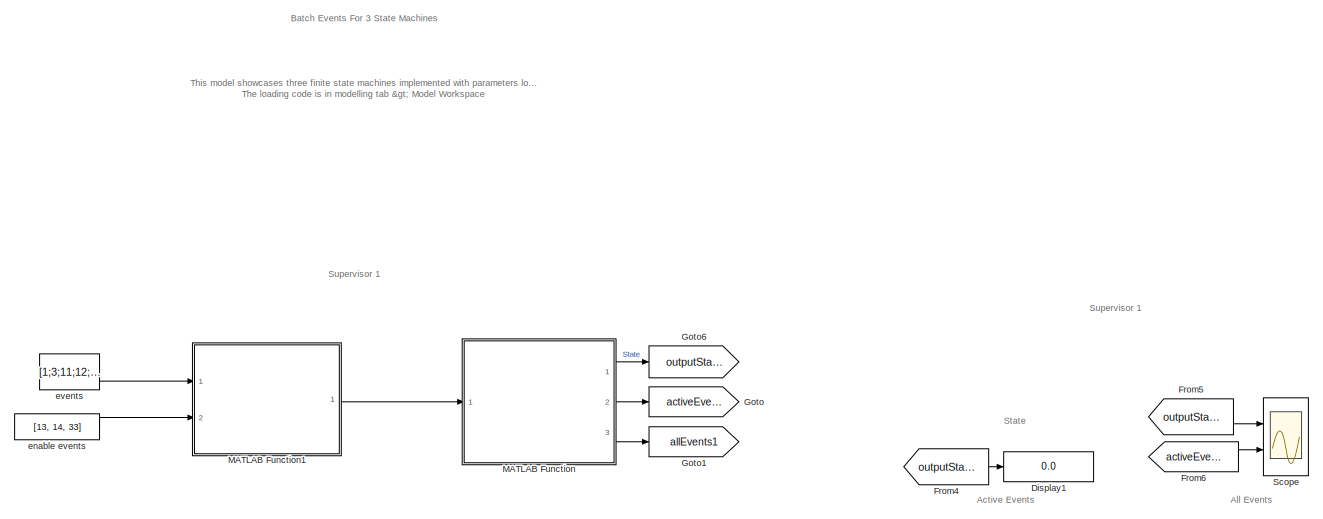
[diagram: root canvas - part 1/3, top left region]
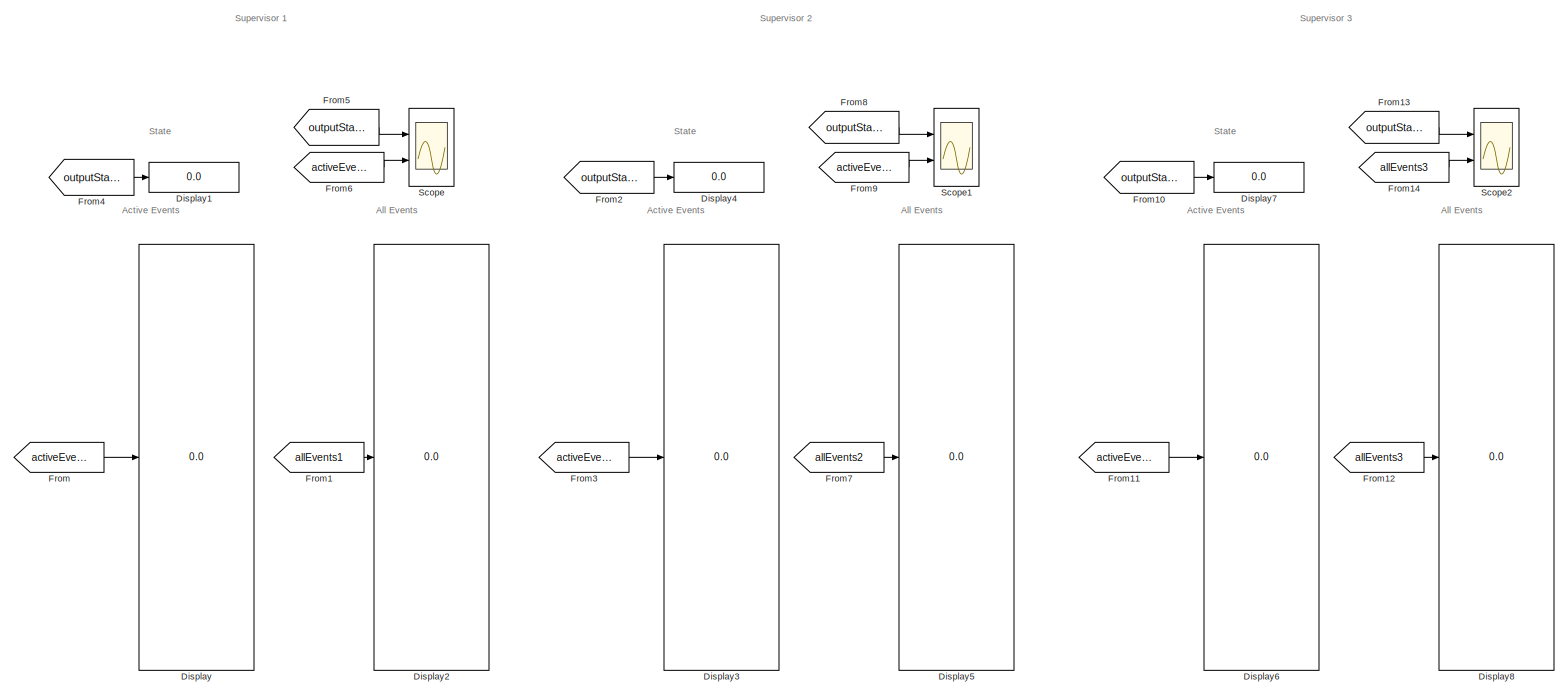
[diagram: root canvas - part 2/3, middle right region]
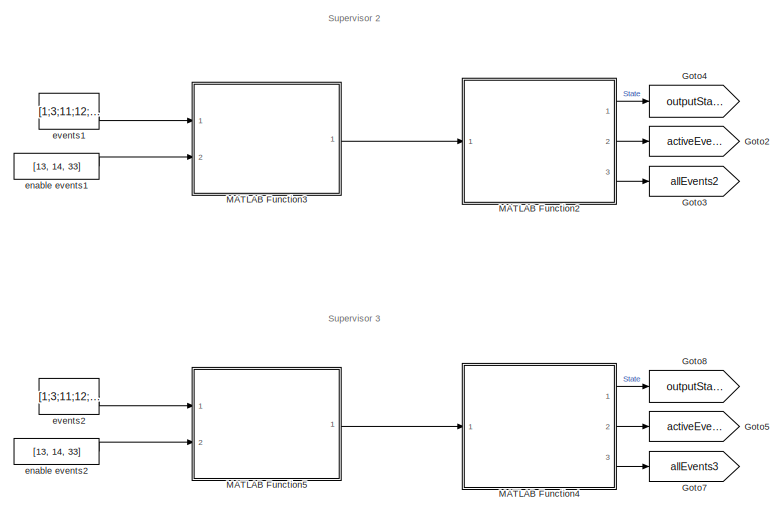
[diagram: root canvas - part 3/3, bottom left region]
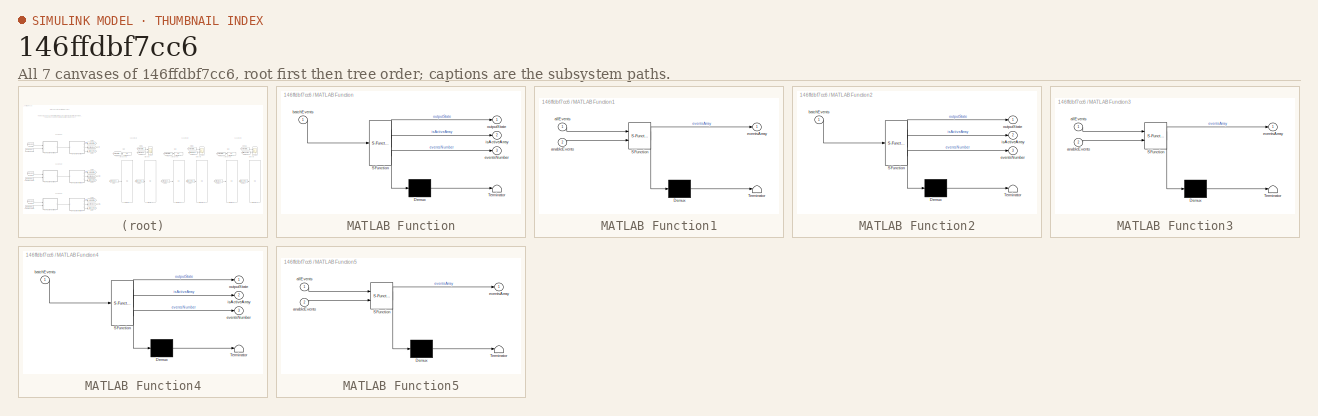
[diagram: thumbnail index - all 7 canvases of the model, root first then tree order]
MODEL slx_146ffdbf7cc6
KIND model
CONFIG AbsTol = auto
CONFIG EnableMultiTasking = off
CONFIG FixedStep = auto
CONFIG MaxStep = auto
CONFIG MinStep = auto
CONFIG RelTol = 1e-3
CONFIG SampleTimeConstraint = Unconstrained
CONFIG SolverName = VariableStepAuto
CONFIG StartTime = 0.0
CONFIG StopTime = 10.0
WORKSPACE source: MATLAB code (in-file)
WORKSPACE code: addpath model
WORKSPACE code: addpath utils
WORKSPACE utils1 = StateMachineUtils
WORKSPACE utils1 = utils1.loadEventsInAds('resources/tct/ALLEVENT.ADS')
WORKSPACE utils1 = utils1.loadDisabledEventsInPdt('resources/tct/supervisor1/DATA_SIMSUP1_MG1.PDT')
WORKSPACE utils1 = utils1.loadTransitionsInAds('resources/tct/supervisor1/SIMSUP1_MG1.ADS')
WORKSPACE encodedStates1 = StateEncoder.encode(utils1.statesArray)
WORKSPACE transitions1 = utils1.transitions
WORKSPACE allEvents1 = utils1.eventsArray
WORKSPACE utils2 = StateMachineUtils
WORKSPACE utils2 = utils2.loadEventsInAds('resources/tct/ALLEVENT.ADS')
WORKSPACE utils2 = utils2.loadDisabledEventsInPdt('resources/tct/supervisor2/DATA_SIMSUP2_MG1.PDT')
WORKSPACE utils2 = utils2.loadTransitionsInAds('resources/tct/supervisor2/SIMSUP2_MG1.ADS')
WORKSPACE encodedStates2 = StateEncoder.encode(utils2.statesArray)
WORKSPACE transitions2 = utils2.transitions
WORKSPACE allEvents2 = utils2.eventsArray
WORKSPACE utils3 = StateMachineUtils
WORKSPACE utils3 = utils3.loadEventsInAds('resources/tct/ALLEVENT.ADS')
WORKSPACE utils3 = utils3.loadDisabledEventsInPdt('resources/tct/supervisor3/DATA_SIMSUP3_MG1.PDT')
WORKSPACE utils3 = utils3.loadTransitionsInAds('resources/tct/supervisor3/SIMSUP3_MG1.ADS')
WORKSPACE encodedStates3 = StateEncoder.encode(utils3.statesArray)
WORKSPACE transitions3 = utils3.transitions
WORKSPACE allEvents3 = utils3.eventsArray
BLOCK [Display] Display
  Decimation = 1
  Ports = [1]
BLOCK [Display] Display1
  Decimation = 1
  Ports = [1]
BLOCK [Display] Display2
  Decimation = 1
  Ports = [1]
BLOCK [Display] Display3
  Decimation = 1
  Ports = [1]
BLOCK [Display] Display4
  Decimation = 1
  Ports = [1]
BLOCK [Display] Display5
  Decimation = 1
  Ports = [1]
BLOCK [Display] Display6
  Decimation = 1
  Ports = [1]
BLOCK [Display] Display7
  Decimation = 1
  Ports = [1]
BLOCK [Display] Display8
  Decimation = 1
  Ports = [1]
BLOCK [From] From
  GotoTag = activeEvents1
BLOCK [From] From1
  GotoTag = allEvents1
BLOCK [From] From10
  GotoTag = outputState3
BLOCK [From] From11
  GotoTag = activeEvents3
BLOCK [From] From12
  GotoTag = allEvents3
BLOCK [From] From13
  GotoTag = outputState3
BLOCK [From] From14
  GotoTag = allEvents3
BLOCK [From] From2
  GotoTag = outputState2
BLOCK [From] From3
  GotoTag = activeEvents2
BLOCK [From] From4
  GotoTag = outputState1
BLOCK [From] From5
  GotoTag = outputState1
BLOCK [From] From6
  GotoTag = activeEvents1
BLOCK [From] From7
  GotoTag = allEvents2
BLOCK [From] From8
  GotoTag = outputState2
BLOCK [From] From9
  GotoTag = activeEvents2
BLOCK [Goto] Goto
  GotoTag = activeEvents1
BLOCK [Goto] Goto1
  GotoTag = allEvents1
BLOCK [Goto] Goto2
  GotoTag = activeEvents2
BLOCK [Goto] Goto3
  GotoTag = allEvents2
BLOCK [Goto] Goto4
  GotoTag = outputState2
BLOCK [Goto] Goto5
  GotoTag = activeEvents3
BLOCK [Goto] Goto6
  GotoTag = outputState1
BLOCK [Goto] Goto7
  GotoTag = allEvents3
BLOCK [Goto] Goto8
  GotoTag = outputState3
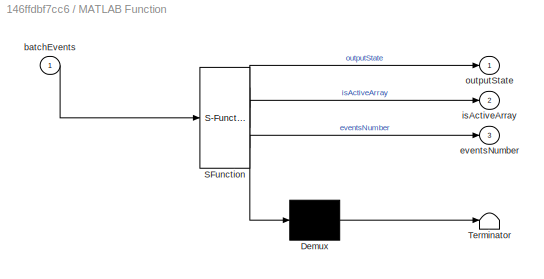
BLOCK [SubSystem] MATLAB Function
  ErrorFcn = Stateflow.Translate.translate
  PermitHierarchicalResolution = ExplicitOnly
  Ports = [1, 3]
  RequestExecContextInheritance = off
  SFBlockType = MATLAB Function
  TreatAsAtomicUnit = on
BLOCK [Demux] MATLAB Function/ Demux 
  Outputs = 1
  Ports = [1, 1]
BLOCK [S-Function] MATLAB Function/ SFunction 
  EnableBusSupport = on
  FunctionName = sf_sfun
  Parameters = allEvents1,encodedStates1,transitions1
  PortCounts = [1 4]
  Ports = [1, 4]
  SFcnIsStateOwnerBlock = off
  SFunctionDeploymentMode = off
  Tag = Stateflow S-Function 2
BLOCK [Terminator] MATLAB Function/ Terminator 
BLOCK [Inport] MATLAB Function/batchEvents
BLOCK [Outport] MATLAB Function/eventsNumber
  Port = 3
BLOCK [Outport] MATLAB Function/isActiveArray
  Port = 2
BLOCK [Outport] MATLAB Function/outputState
BLOCK [SubSystem] MATLAB Function1
  ErrorFcn = Stateflow.Translate.translate
  PermitHierarchicalResolution = ExplicitOnly
  Ports = [2, 1]
  RequestExecContextInheritance = off
  SFBlockType = MATLAB Function
  TreatAsAtomicUnit = on
BLOCK [Demux] MATLAB Function1/ Demux 
  Outputs = 1
  Ports = [1, 1]
BLOCK [S-Function] MATLAB Function1/ SFunction 
  EnableBusSupport = on
  FunctionName = sf_sfun
  PortCounts = [2 2]
  Ports = [2, 2]
  SFcnIsStateOwnerBlock = off
  SFunctionDeploymentMode = off
  Tag = Stateflow S-Function 1
BLOCK [Terminator] MATLAB Function1/ Terminator 
BLOCK [Inport] MATLAB Function1/allEvents
BLOCK [Inport] MATLAB Function1/anableEvents
  Port = 2
BLOCK [Outport] MATLAB Function1/eventsArray
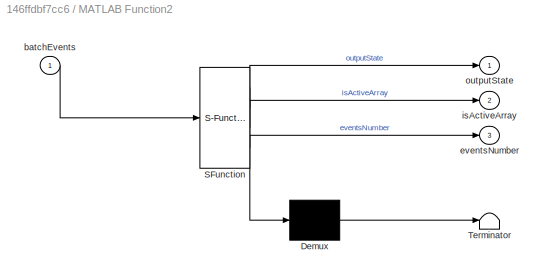
BLOCK [SubSystem] MATLAB Function2
  ErrorFcn = Stateflow.Translate.translate
  PermitHierarchicalResolution = ExplicitOnly
  Ports = [1, 3]
  RequestExecContextInheritance = off
  SFBlockType = MATLAB Function
  TreatAsAtomicUnit = on
BLOCK [Demux] MATLAB Function2/ Demux 
  Outputs = 1
  Ports = [1, 1]
BLOCK [S-Function] MATLAB Function2/ SFunction 
  EnableBusSupport = on
  FunctionName = sf_sfun
  Parameters = allEvents2,encodedStates2,transitions2
  PortCounts = [1 4]
  Ports = [1, 4]
  SFcnIsStateOwnerBlock = off
  SFunctionDeploymentMode = off
  Tag = Stateflow S-Function 3
BLOCK [Terminator] MATLAB Function2/ Terminator 
BLOCK [Inport] MATLAB Function2/batchEvents
BLOCK [Outport] MATLAB Function2/eventsNumber
  Port = 3
BLOCK [Outport] MATLAB Function2/isActiveArray
  Port = 2
BLOCK [Outport] MATLAB Function2/outputState
BLOCK [SubSystem] MATLAB Function3
  ErrorFcn = Stateflow.Translate.translate
  PermitHierarchicalResolution = ExplicitOnly
  Ports = [2, 1]
  RequestExecContextInheritance = off
  SFBlockType = MATLAB Function
  TreatAsAtomicUnit = on
BLOCK [Demux] MATLAB Function3/ Demux 
  Outputs = 1
  Ports = [1, 1]
BLOCK [S-Function] MATLAB Function3/ SFunction 
  EnableBusSupport = on
  FunctionName = sf_sfun
  PortCounts = [2 2]
  Ports = [2, 2]
  SFcnIsStateOwnerBlock = off
  SFunctionDeploymentMode = off
  Tag = Stateflow S-Function 4
BLOCK [Terminator] MATLAB Function3/ Terminator 
BLOCK [Inport] MATLAB Function3/allEvents
BLOCK [Inport] MATLAB Function3/anableEvents
  Port = 2
BLOCK [Outport] MATLAB Function3/eventsArray
BLOCK [SubSystem] MATLAB Function4
  ErrorFcn = Stateflow.Translate.translate
  PermitHierarchicalResolution = ExplicitOnly
  Ports = [1, 3]
  RequestExecContextInheritance = off
  SFBlockType = MATLAB Function
  TreatAsAtomicUnit = on
BLOCK [Demux] MATLAB Function4/ Demux 
  Outputs = 1
  Ports = [1, 1]
BLOCK [S-Function] MATLAB Function4/ SFunction 
  EnableBusSupport = on
  FunctionName = sf_sfun
  Parameters = allEvents3,encodedStates3,transitions3
  PortCounts = [1 4]
  Ports = [1, 4]
  SFcnIsStateOwnerBlock = off
  SFunctionDeploymentMode = off
  Tag = Stateflow S-Function 5
BLOCK [Terminator] MATLAB Function4/ Terminator 
BLOCK [Inport] MATLAB Function4/batchEvents
BLOCK [Outport] MATLAB Function4/eventsNumber
  Port = 3
BLOCK [Outport] MATLAB Function4/isActiveArray
  Port = 2
BLOCK [Outport] MATLAB Function4/outputState
BLOCK [SubSystem] MATLAB Function5
  ErrorFcn = Stateflow.Translate.translate
  PermitHierarchicalResolution = ExplicitOnly
  Ports = [2, 1]
  RequestExecContextInheritance = off
  SFBlockType = MATLAB Function
  TreatAsAtomicUnit = on
BLOCK [Demux] MATLAB Function5/ Demux 
  Outputs = 1
  Ports = [1, 1]
BLOCK [S-Function] MATLAB Function5/ SFunction 
  EnableBusSupport = on
  FunctionName = sf_sfun
  PortCounts = [2 2]
  Ports = [2, 2]
  SFcnIsStateOwnerBlock = off
  SFunctionDeploymentMode = off
  Tag = Stateflow S-Function 6
BLOCK [Terminator] MATLAB Function5/ Terminator 
BLOCK [Inport] MATLAB Function5/allEvents
BLOCK [Inport] MATLAB Function5/anableEvents
  Port = 2
BLOCK [Outport] MATLAB Function5/eventsArray
BLOCK [Scope] Scope
  Floating = off
  NumInputPorts = 2
  Ports = [2]
  ScopeSpecificationString = Simulink.scopes.TimeScopeBlockCfg('CurrentConfiguration', extmgr.ConfigurationSet(extmgr.Configuration('Core','General UI',true),extmgr.Configuration('Core','Source UI',true),extmgr.Configuration('Sources','WiredSimulink',true,'DataLoggingVariableName','ScopeData1'),extmgr.Configuration('Visuals','Time Domain',true,'SerializedDisplays',{struct('MinYLimReal','-1.00000','MaxYLimReal','1.00000','YLab...<+2516ch>
BLOCK [Scope] Scope1
  Floating = off
  NumInputPorts = 2
  Ports = [2]
  ScopeSpecificationString = Simulink.scopes.TimeScopeBlockCfg('CurrentConfiguration', extmgr.ConfigurationSet(extmgr.Configuration('Core','General UI',true),extmgr.Configuration('Core','Source UI',true),extmgr.Configuration('Sources','WiredSimulink',true),extmgr.Configuration('Visuals','Time Domain',true,'SerializedDisplays',{struct('MinYLimReal','1.00000','MaxYLimReal','3.00000','YLabelReal','','MinYLimMag','1.00000','MaxYL...<+2501ch>
BLOCK [Scope] Scope2
  Floating = off
  NumInputPorts = 2
  Ports = [2]
  ScopeSpecificationString = Simulink.scopes.TimeScopeBlockCfg('CurrentConfiguration', extmgr.ConfigurationSet(extmgr.Configuration('Core','General UI',true),extmgr.Configuration('Core','Source UI',true),extmgr.Configuration('Sources','WiredSimulink',true,'DataLoggingVariableName','ScopeData2'),extmgr.Configuration('Visuals','Time Domain',true,'SerializedDisplays',{struct('MinYLimReal','-1.00000','MaxYLimReal','1.00000','YLab...<+2516ch>
BLOCK [Constant] enable events
  Value = [13, 14, 33]
BLOCK [Constant] enable events1
  Value = [13, 14, 33]
BLOCK [Constant] enable events2
  Value = [13, 14, 33]
BLOCK [Constant] events
  Value = [1;3;11;12;13;14;16;21;23;25;27;31;32;33;34;36;41;43;51;52;54;56;58;61;63]
BLOCK [Constant] events1
  Value = [1;3;11;12;13;14;16;21;23;25;27;31;32;33;34;36;41;43;51;52;54;56;58;61;63]
BLOCK [Constant] events2
  Value = [1;3;11;12;13;14;16;21;23;25;27;31;32;33;34;36;41;43;51;52;54;56;58;61;63]
ANNOTATION (root): This model showcases three finite state machines implemented with parameters loaded from files, capable of processing a batch of events during each time step. Each event has a number which represents the priority of assignament in the machine. For instance, the events 13, 14, and 33 are assigned in the same order. The loading code is in modelling tab > Model Workspace
ANNOTATION (root): Batch Events For 3 State Machines
ANNOTATION (root): Active Events
ANNOTATION (root): All Events
ANNOTATION (root): State
ANNOTATION (root): Supervisor 1
ANNOTATION (root): Supervisor 2
ANNOTATION (root): Supervisor 3
LINE From10:1 -> Display7:1
LINE From11:1 -> Display6:1
LINE From12:1 -> Display8:1
LINE From13:1 -> Scope2:1
LINE From14:1 -> Scope2:2
LINE From1:1 -> Display2:1
LINE From2:1 -> Display4:1
LINE From3:1 -> Display3:1
LINE From4:1 -> Display1:1
LINE From5:1 -> Scope:1
LINE From6:1 -> Scope:2
LINE From7:1 -> Display5:1
LINE From8:1 -> Scope1:1
LINE From9:1 -> Scope1:2
LINE From:1 -> Display:1
LINE MATLAB Function1:1 -> MATLAB Function:1
LINE MATLAB Function2:1 -> Goto4:1
LINE MATLAB Function2:2 -> Goto2:1
LINE MATLAB Function2:3 -> Goto3:1
LINE MATLAB Function3:1 -> MATLAB Function2:1
LINE MATLAB Function4:1 -> Goto8:1
LINE MATLAB Function4:2 -> Goto5:1
LINE MATLAB Function4:3 -> Goto7:1
LINE MATLAB Function5:1 -> MATLAB Function4:1
LINE MATLAB Function:1 -> Goto6:1
LINE MATLAB Function:2 -> Goto:1
LINE MATLAB Function:3 -> Goto1:1
LINE enable events1:1 -> MATLAB Function3:2
LINE enable events2:1 -> MATLAB Function5:2
LINE enable events:1 -> MATLAB Function1:2
LINE events1:1 -> MATLAB Function3:1
LINE events2:1 -> MATLAB Function5:1
LINE events:1 -> MATLAB Function1:1
CHART MATLAB Function1 states=1 transitions=1
  STATE_LABEL 'eML_blk_kernel()'
  STATE_LABEL 'SCRIPT:\nfunction eventsArray = eventsGenerator(allEvents, anableEvents)\n\n[~, indexes] = ismember(anableEvents, allEvents);\n\neventsArray = zeros(length(allEvents), 1);\n\neventsArray(indexes) = 1;\n'  <repeated x3 — deduplicated; at blocks: MATLAB Function1, MATLAB Function3, MATLAB Function5>
CHART MATLAB Function states=1 transitions=1
  STATE_LABEL 'eML_blk_kernel()'
  STATE_LABEL 'SCRIPT:\nfunction [outputState, isActiveArray, eventsNumber] = stateMachine1( ...\n    batchEvents, ...\n    allEvents1, ...\n    transitions1, ...\n    encodedStates1)\n% State Machine with parameters from files.\n% Receives a batch of events and process one event at time, starting with\n% the event of index 1.\n% batchEvents: array with 0s and 1s where 1 is the enabled event while 0,\n% is disabled event;...<+883ch>'
CHART MATLAB Function2 states=1 transitions=1
  STATE_LABEL 'eML_blk_kernel()'
  STATE_LABEL 'SCRIPT:\nfunction [outputState, isActiveArray, eventsNumber] = stateMachine2( ...\n    batchEvents, ...\n    allEvents2, ...\n    transitions2, ...\n    encodedStates2)\n% State Machine with parameters from files.\n% Receives a batch of events and process one event at time, starting with\n% the event of index 1.\n% batchEvents: array with 0s and 1s where 1 is the enabled event while 0,\n% is disabled event;...<+883ch>'
CHART MATLAB Function3 states=1 transitions=1
  STATE_LABEL 'eML_blk_kernel()'
CHART MATLAB Function4 states=1 transitions=1
  STATE_LABEL 'eML_blk_kernel()'
  STATE_LABEL 'SCRIPT:\nfunction [outputState, isActiveArray, eventsNumber] = stateMachine3( ...\n    batchEvents, ...\n    allEvents3, ...\n    transitions3, ...\n    encodedStates3)\n% State Machine with parameters from files.\n% Receives a batch of events and process one event at time, starting with\n% the event of index 1.\n% batchEvents: array with 0s and 1s where 1 is the enabled event while 0,\n% is disabled event;...<+883ch>'
CHART MATLAB Function5 states=1 transitions=1
  STATE_LABEL 'eML_blk_kernel()'
CHART  states=0 transitions=0
CHART  states=0 transitions=0
CHART  states=0 transitions=0
CHART  states=0 transitions=0
CHART  states=0 transitions=0
CHART  states=0 transitions=0
